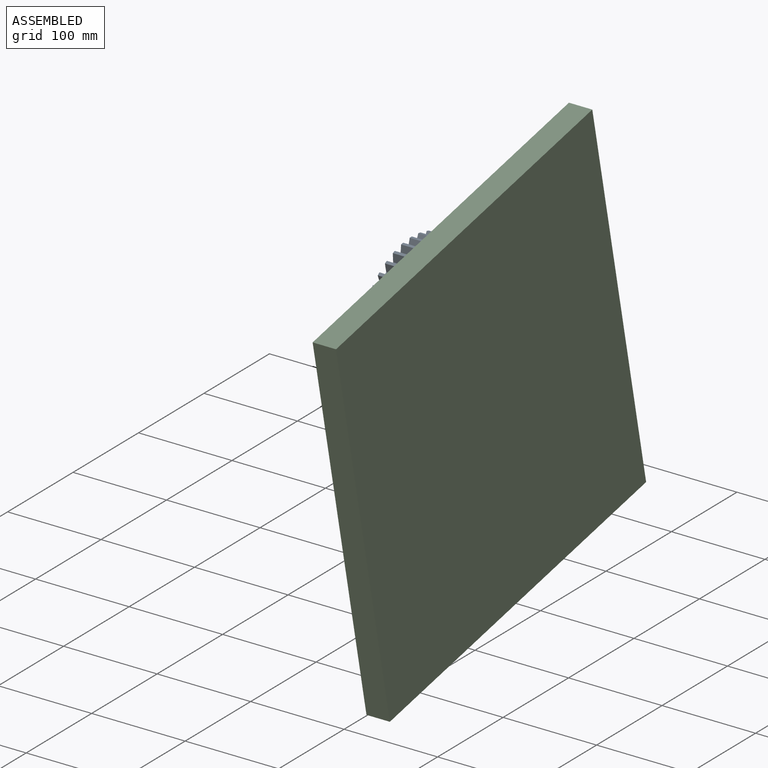
[diagram: assembled view]
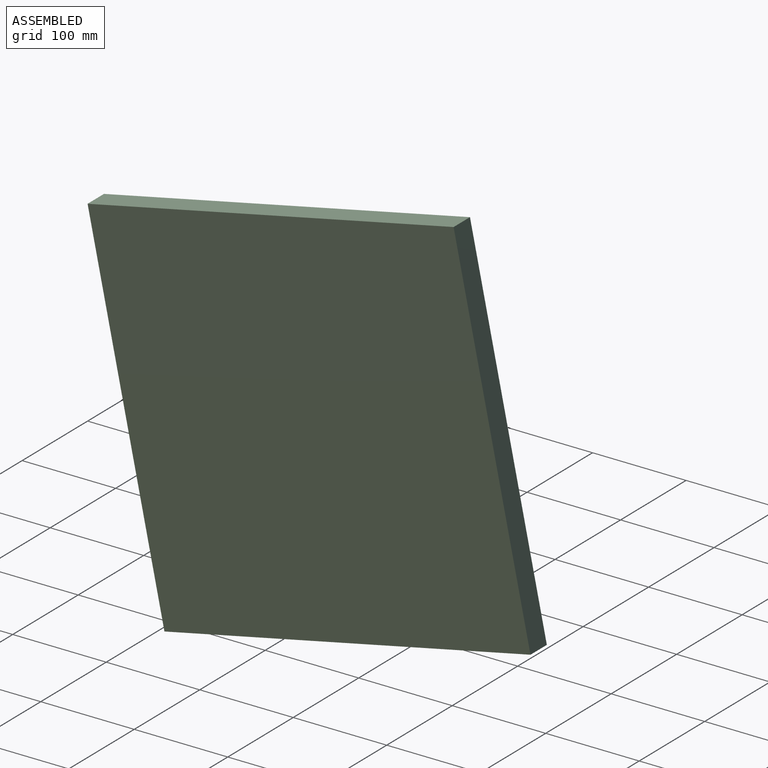
[diagram: assembled view, second angle]
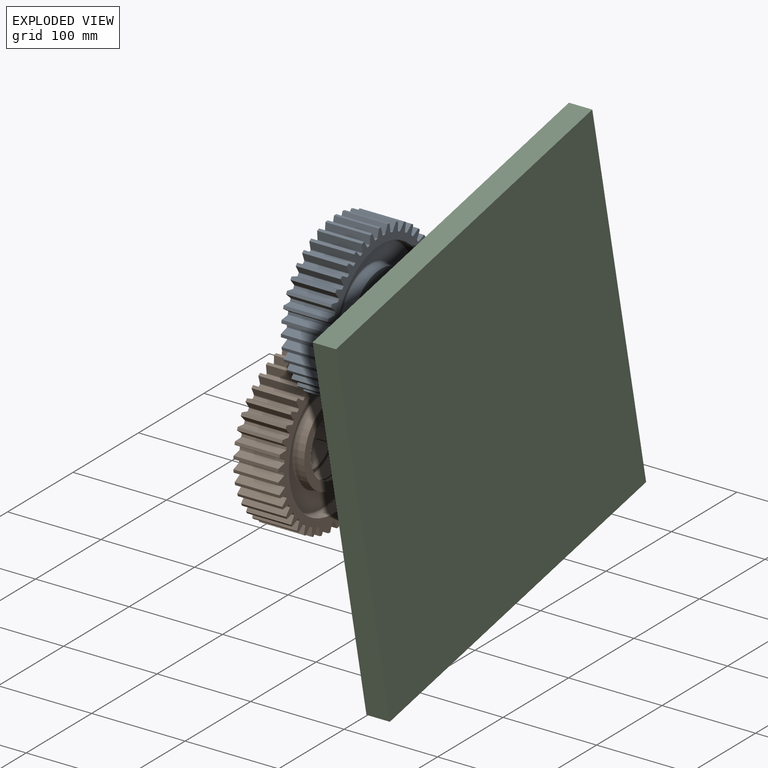
[diagram: exploded view]
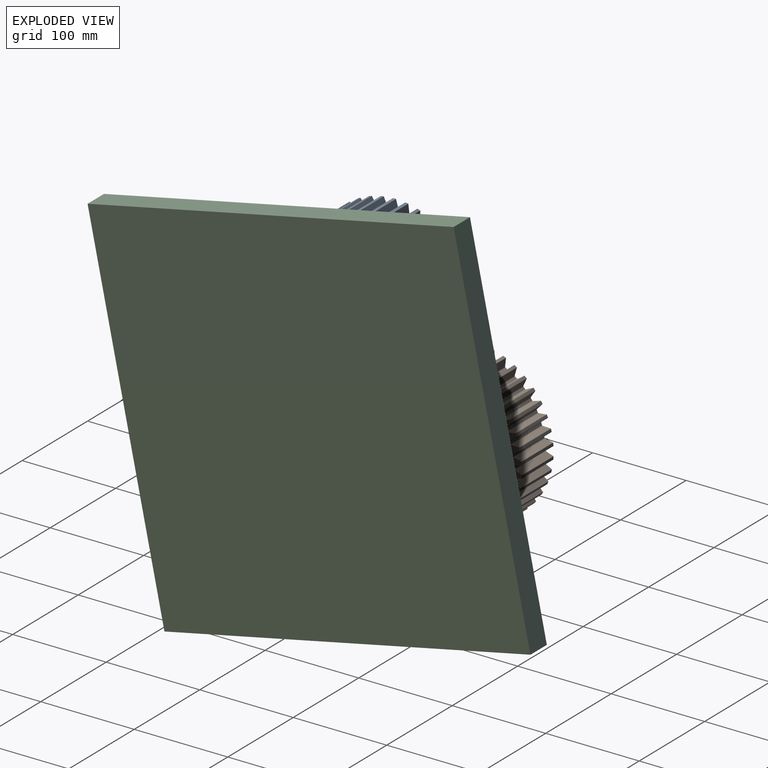
[diagram: exploded view, second angle]
ASSEMBLY  parts=3 mates=2
PART A: 267 faces, bbox 48x167.7x167.7 mm
  f0: cylinder r=84mm len=48mm, axis (-1,0,0), area 155mm2, adj f2,f234,f236,f264
  f1: cylinder r=1mm len=48mm, axis (-1,0,0), area 59.3mm2, adj f2,f5,f234,f236
  f2: plane 48x8.57mm, normal (0,-0.19,-0.98), area 418.9mm2, adj f0,f1,f234,f236
  f3: plane 48x7.63mm, normal (0,-0.48,0.87), area 418.9mm2, adj f4,f6,f234,f236
  f4: cylinder r=1mm len=48mm, axis (-1,0,0), area 59.3mm2, adj f3,f5,f234,f236
  f5: cylinder r=75mm len=48mm, axis (-1,0,0), area 100mm2, adj f1,f4,f234,f236
  f6: cylinder r=84mm len=48mm, axis (-1,0,0), area 155mm2, adj f3,f8,f234,f236
  f7: cylinder r=1mm len=48mm, axis (-1,0,0), area 59.3mm2, adj f8,f11,f234,f236
  f8: plane 48x8.72mm, normal (0,-0.03,-1), area 418.9mm2, adj f6,f7,f234,f236
  f9: plane 48x6.88mm, normal (0,-0.62,0.79), area 418.9mm2, adj f10,f12,f234,f236
  f10: cylinder r=1mm len=48mm, axis (-1,0,0), area 59.3mm2, adj f9,f11,f234,f236
  f11: cylinder r=75mm len=48mm, axis (-1,0,0), area 100mm2, adj f7,f10,f234,f236
  f12: cylinder r=84mm len=48mm, axis (-1,0,0), area 155mm2, adj f9,f14,f234,f236
  f13: cylinder r=1mm len=48mm, axis (-1,0,0), area 59.3mm2, adj f14,f17,f234,f236
  f14: plane 48x8.66mm, normal (0,0.12,-0.99), area 418.9mm2, adj f12,f13,f234,f236
  f15: plane 48x6.38mm, normal (0,-0.73,0.68), area 418.9mm2, adj f16,f18,f234,f236
  f16: cylinder r=1mm len=48mm, axis (-1,0,0), area 59.3mm2, adj f15,f17,f234,f236
  f17: cylinder r=75mm len=48mm, axis (-1,0,0), area 100mm2, adj f13,f16,f234,f236
  f18: cylinder r=84mm len=48mm, axis (-1,0,0), area 155mm2, adj f15,f20,f234,f236
  f19: cylinder r=1mm len=48mm, axis (-1,0,0), area 59.3mm2, adj f20,f23,f234,f236
  f20: plane 48x8.39mm, normal (0,0.28,-0.96), area 418.9mm2, adj f18,f19,f234,f236
  f21: plane 48x7.24mm, normal (0,-0.83,0.56), area 418.9mm2, adj f22,f24,f234,f236
  f22: cylinder r=1mm len=48mm, axis (-1,0,0), area 59.3mm2, adj f21,f23,f234,f236
  f23: cylinder r=75mm len=48mm, axis (-1,0,0), area 100mm2, adj f19,f22,f234,f236
  f24: cylinder r=84mm len=48mm, axis (-1,0,0), area 155mm2, adj f21,f26,f234,f236
  f25: cylinder r=1mm len=48mm, axis (-1,0,0), area 59.3mm2, adj f26,f29,f234,f236
  f26: plane 48x7.91mm, normal (0,0.42,-0.91), area 418.9mm2, adj f24,f25,f234,f236
  f27: plane 48x7.91mm, normal (0,-0.91,0.42), area 418.9mm2, adj f28,f30,f234,f236
  f28: cylinder r=1mm len=48mm, axis (-1,0,0), area 59.3mm2, adj f27,f29,f234,f236
  f29: cylinder r=75mm len=48mm, axis (-1,0,0), area 100mm2, adj f25,f28,f234,f236
  f30: cylinder r=84mm len=48mm, axis (-1,0,0), area 155mm2, adj f27,f32,f234,f236
  f31: cylinder r=1mm len=48mm, axis (-1,0,0), area 59.3mm2, adj f32,f35,f234,f236
  f32: plane 48x7.24mm, normal (0,0.56,-0.83), area 418.9mm2, adj f30,f31,f234,f236
  f33: plane 48x8.39mm, normal (0,-0.96,0.28), area 418.9mm2, adj f34,f36,f234,f236
  f34: cylinder r=1mm len=48mm, axis (-1,0,0), area 59.3mm2, adj f33,f35,f234,f236
  f35: cylinder r=75mm len=48mm, axis (-1,0,0), area 100mm2, adj f31,f34,f234,f236
  f36: cylinder r=84mm len=48mm, axis (-1,0,0), area 155mm2, adj f33,f38,f234,f236
  f37: cylinder r=1mm len=48mm, axis (-1,0,0), area 59.3mm2, adj f38,f41,f234,f236
  f38: plane 48x6.38mm, normal (0,0.68,-0.73), area 418.9mm2, adj f36,f37,f234,f236
  f39: plane 48x8.66mm, normal (0,-0.99,0.12), area 418.9mm2, adj f40,f42,f234,f236
  f40: cylinder r=1mm len=48mm, axis (-1,0,0), area 59.3mm2, adj f39,f41,f234,f236
  f41: cylinder r=75mm len=48mm, axis (-1,0,0), area 100mm2, adj f37,f40,f234,f236
  f42: cylinder r=84mm len=48mm, axis (-1,0,0), area 155mm2, adj f39,f44,f234,f236
  f43: cylinder r=1mm len=48mm, axis (-1,0,0), area 59.3mm2, adj f44,f47,f234,f236
  f44: plane 48x6.88mm, normal (0,0.79,-0.62), area 418.9mm2, adj f42,f43,f234,f236
  f45: plane 48x8.72mm, normal (0,-1,-0.03), area 418.9mm2, adj f46,f48,f234,f236
  f46: cylinder r=1mm len=48mm, axis (-1,0,0), area 59.3mm2, adj f45,f47,f234,f236
  f47: cylinder r=75mm len=48mm, axis (-1,0,0), area 100mm2, adj f43,f46,f234,f236
  f48: cylinder r=84mm len=48mm, axis (-1,0,0), area 155mm2, adj f45,f50,f234,f236
  f49: cylinder r=1mm len=48mm, axis (-1,0,0), area 59.3mm2, adj f50,f53,f234,f236
  f50: plane 48x7.63mm, normal (0,0.87,-0.48), area 418.9mm2, adj f48,f49,f234,f236
  f51: plane 48x8.57mm, normal (0,-0.98,-0.19), area 418.9mm2, adj f52,f54,f234,f236
  f52: cylinder r=1mm len=48mm, axis (-1,0,0), area 59.3mm2, adj f51,f53,f234,f236
  f53: cylinder r=75mm len=48mm, axis (-1,0,0), area 100mm2, adj f49,f52,f234,f236
  f54: cylinder r=84mm len=48mm, axis (-1,0,0), area 155mm2, adj f51,f56,f234,f236
  f55: cylinder r=1mm len=48mm, axis (-1,0,0), area 59.3mm2, adj f56,f59,f234,f236
  f56: plane 48x8.2mm, normal (0,0.94,-0.34), area 418.9mm2, adj f54,f55,f234,f236
  f57: plane 48x8.2mm, normal (0,-0.94,-0.34), area 418.9mm2, adj f58,f60,f234,f236
  f58: cylinder r=1mm len=48mm, axis (-1,0,0), area 59.3mm2, adj f57,f59,f234,f236
  f59: cylinder r=75mm len=48mm, axis (-1,0,0), area 100mm2, adj f55,f58,f234,f236
  f60: cylinder r=84mm len=48mm, axis (-1,0,0), area 155mm2, adj f57,f62,f234,f236
  f61: cylinder r=1mm len=48mm, axis (-1,0,0), area 59.3mm2, adj f62,f65,f234,f236
  f62: plane 48x8.57mm, normal (0,0.98,-0.19), area 418.9mm2, adj f60,f61,f234,f236
  f63: plane 48x7.63mm, normal (0,-0.87,-0.48), area 418.9mm2, adj f64,f66,f234,f236
  f64: cylinder r=1mm len=48mm, axis (-1,0,0), area 59.3mm2, adj f63,f65,f234,f236
  f65: cylinder r=75mm len=48mm, axis (-1,0,0), area 100mm2, adj f61,f64,f234,f236
  f66: cylinder r=84mm len=48mm, axis (-1,0,0), area 155mm2, adj f63,f68,f234,f236
  f67: cylinder r=1mm len=48mm, axis (-1,0,0), area 59.3mm2, adj f68,f71,f234,f236
  f68: plane 48x8.72mm, normal (0,1,-0.03), area 418.9mm2, adj f66,f67,f234,f236
  f69: plane 48x6.88mm, normal (0,-0.79,-0.62), area 418.9mm2, adj f70,f72,f234,f236
  f70: cylinder r=1mm len=48mm, axis (-1,0,0), area 59.3mm2, adj f69,f71,f234,f236
  f71: cylinder r=75mm len=48mm, axis (-1,0,0), area 100mm2, adj f67,f70,f234,f236
  f72: cylinder r=84mm len=48mm, axis (-1,0,0), area 155mm2, adj f69,f74,f234,f236
  f73: cylinder r=1mm len=48mm, axis (-1,0,0), area 59.3mm2, adj f74,f77,f234,f236
  f74: plane 48x8.66mm, normal (0,0.99,0.12), area 418.9mm2, adj f72,f73,f234,f236
  f75: plane 48x6.38mm, normal (0,-0.68,-0.73), area 418.9mm2, adj f76,f78,f234,f236
  f76: cylinder r=1mm len=48mm, axis (-1,0,0), area 59.3mm2, adj f75,f77,f234,f236
  f77: cylinder r=75mm len=48mm, axis (-1,0,0), area 100mm2, adj f73,f76,f234,f236
  f78: cylinder r=84mm len=48mm, axis (-1,0,0), area 155mm2, adj f75,f80,f234,f236
  f79: cylinder r=1mm len=48mm, axis (-1,0,0), area 59.3mm2, adj f80,f83,f234,f236
  f80: plane 48x8.39mm, normal (0,0.96,0.28), area 418.9mm2, adj f78,f79,f234,f236
  f81: plane 48x7.24mm, normal (0,-0.56,-0.83), area 418.9mm2, adj f82,f84,f234,f236
  f82: cylinder r=1mm len=48mm, axis (-1,0,0), area 59.3mm2, adj f81,f83,f234,f236
  f83: cylinder r=75mm len=48mm, axis (-1,0,0), area 100mm2, adj f79,f82,f234,f236
  f84: cylinder r=84mm len=48mm, axis (-1,0,0), area 155mm2, adj f81,f86,f234,f236
  f85: cylinder r=1mm len=48mm, axis (-1,0,0), area 59.3mm2, adj f86,f89,f234,f236
  f86: plane 48x7.91mm, normal (0,0.91,0.42), area 418.9mm2, adj f84,f85,f234,f236
  f87: plane 48x7.91mm, normal (0,-0.42,-0.91), area 418.9mm2, adj f88,f90,f234,f236
  f88: cylinder r=1mm len=48mm, axis (-1,0,0), area 59.3mm2, adj f87,f89,f234,f236
  f89: cylinder r=75mm len=48mm, axis (-1,0,0), area 100mm2, adj f85,f88,f234,f236
  f90: cylinder r=84mm len=48mm, axis (-1,0,0), area 155mm2, adj f87,f92,f234,f236
  f91: cylinder r=1mm len=48mm, axis (-1,0,0), area 59.3mm2, adj f92,f95,f234,f236
  f92: plane 48x7.24mm, normal (0,0.83,0.56), area 418.9mm2, adj f90,f91,f234,f236
  f93: plane 48x8.39mm, normal (0,-0.28,-0.96), area 418.9mm2, adj f94,f96,f234,f236
  f94: cylinder r=1mm len=48mm, axis (-1,0,0), area 59.3mm2, adj f93,f95,f234,f236
  f95: cylinder r=75mm len=48mm, axis (-1,0,0), area 100mm2, adj f91,f94,f234,f236
  f96: cylinder r=84mm len=48mm, axis (-1,0,0), area 155mm2, adj f93,f98,f234,f236
  f97: cylinder r=1mm len=48mm, axis (-1,0,0), area 59.3mm2, adj f98,f101,f234,f236
  f98: plane 48x6.38mm, normal (0,0.73,0.68), area 418.9mm2, adj f96,f97,f234,f236
  f99: plane 48x8.66mm, normal (0,-0.12,-0.99), area 418.9mm2, adj f100,f102,f234,f236
  f100: cylinder r=1mm len=48mm, axis (-1,0,0), area 59.3mm2, adj f99,f101,f234,f236
  f101: cylinder r=75mm len=48mm, axis (-1,0,0), area 100mm2, adj f97,f100,f234,f236
  f102: cylinder r=84mm len=48mm, axis (-1,0,0), area 155mm2, adj f99,f104,f234,f236
  f103: cylinder r=1mm len=48mm, axis (-1,0,0), area 59.3mm2, adj f104,f107,f234,f236
  f104: plane 48x6.88mm, normal (0,0.62,0.79), area 418.9mm2, adj f102,f103,f234,f236
  f105: plane 48x8.72mm, normal (0,0.03,-1), area 418.9mm2, adj f106,f108,f234,f236
  f106: cylinder r=1mm len=48mm, axis (-1,0,0), area 59.3mm2, adj f105,f107,f234,f236
  f107: cylinder r=75mm len=48mm, axis (-1,0,0), area 100mm2, adj f103,f106,f234,f236
  f108: cylinder r=84mm len=48mm, axis (-1,0,0), area 155mm2, adj f105,f110,f234,f236
  f109: cylinder r=1mm len=48mm, axis (-1,0,0), area 59.3mm2, adj f110,f113,f234,f236
  f110: plane 48x7.63mm, normal (0,0.48,0.87), area 418.9mm2, adj f108,f109,f234,f236
  f111: plane 48x8.57mm, normal (0,0.19,-0.98), area 418.9mm2, adj f112,f114,f234,f236
  f112: cylinder r=1mm len=48mm, axis (-1,0,0), area 59.3mm2, adj f111,f113,f234,f236
  f113: cylinder r=75mm len=48mm, axis (-1,0,0), area 100mm2, adj f109,f112,f234,f236
  f114: cylinder r=84mm len=48mm, axis (-1,0,0), area 155mm2, adj f111,f116,f234,f236
  f115: cylinder r=1mm len=48mm, axis (-1,0,0), area 59.3mm2, adj f116,f119,f234,f236
  f116: plane 48x8.2mm, normal (0,0.34,0.94), area 418.9mm2, adj f114,f115,f234,f236
  f117: plane 48x8.2mm, normal (0,0.34,-0.94), area 418.9mm2, adj f118,f120,f234,f236
  f118: cylinder r=1mm len=48mm, axis (-1,0,0), area 59.3mm2, adj f117,f119,f234,f236
  f119: cylinder r=75mm len=48mm, axis (-1,0,0), area 100mm2, adj f115,f118,f234,f236
  f120: cylinder r=84mm len=48mm, axis (-1,0,0), area 155mm2, adj f117,f122,f234,f236
  f121: cylinder r=1mm len=48mm, axis (-1,0,0), area 59.3mm2, adj f122,f125,f234,f236
  f122: plane 48x8.57mm, normal (0,0.19,0.98), area 418.9mm2, adj f120,f121,f234,f236
  f123: plane 48x7.63mm, normal (0,0.48,-0.87), area 418.9mm2, adj f124,f126,f234,f236
  f124: cylinder r=1mm len=48mm, axis (-1,0,0), area 59.3mm2, adj f123,f125,f234,f236
  f125: cylinder r=75mm len=48mm, axis (-1,0,0), area 100mm2, adj f121,f124,f234,f236
  f126: cylinder r=84mm len=48mm, axis (-1,0,0), area 155mm2, adj f123,f128,f234,f236
  f127: cylinder r=1mm len=48mm, axis (-1,0,0), area 59.3mm2, adj f128,f131,f234,f236
  f128: plane 48x8.72mm, normal (0,0.03,1), area 418.9mm2, adj f126,f127,f234,f236
  f129: plane 48x6.88mm, normal (0,0.62,-0.79), area 418.9mm2, adj f130,f132,f234,f236
  f130: cylinder r=1mm len=48mm, axis (-1,0,0), area 59.3mm2, adj f129,f131,f234,f236
  f131: cylinder r=75mm len=48mm, axis (-1,0,0), area 100mm2, adj f127,f130,f234,f236
  f132: cylinder r=84mm len=48mm, axis (-1,0,0), area 155mm2, adj f129,f134,f234,f236
  f133: cylinder r=1mm len=48mm, axis (-1,0,0), area 59.3mm2, adj f134,f137,f234,f236
  f134: plane 48x8.66mm, normal (0,-0.12,0.99), area 418.9mm2, adj f132,f133,f234,f236
  f135: plane 48x6.38mm, normal (0,0.73,-0.68), area 418.9mm2, adj f136,f138,f234,f236
  f136: cylinder r=1mm len=48mm, axis (-1,0,0), area 59.3mm2, adj f135,f137,f234,f236
  f137: cylinder r=75mm len=48mm, axis (-1,0,0), area 100mm2, adj f133,f136,f234,f236
  f138: cylinder r=84mm len=48mm, axis (-1,0,0), area 155mm2, adj f135,f140,f234,f236
  f139: cylinder r=1mm len=48mm, axis (-1,0,0), area 59.3mm2, adj f140,f143,f234,f236
  f140: plane 48x8.39mm, normal (0,-0.28,0.96), area 418.9mm2, adj f138,f139,f234,f236
  f141: plane 48x7.24mm, normal (0,0.83,-0.56), area 418.9mm2, adj f142,f144,f234,f236
  f142: cylinder r=1mm len=48mm, axis (-1,0,0), area 59.3mm2, adj f141,f143,f234,f236
  f143: cylinder r=75mm len=48mm, axis (-1,0,0), area 100mm2, adj f139,f142,f234,f236
  f144: cylinder r=84mm len=48mm, axis (-1,0,0), area 155mm2, adj f141,f146,f234,f236
  f145: cylinder r=1mm len=48mm, axis (-1,0,0), area 59.3mm2, adj f146,f149,f234,f236
  f146: plane 48x7.91mm, normal (0,-0.42,0.91), area 418.9mm2, adj f144,f145,f234,f236
  f147: plane 48x7.91mm, normal (0,0.91,-0.42), area 418.9mm2, adj f148,f150,f234,f236
  f148: cylinder r=1mm len=48mm, axis (-1,0,0), area 59.3mm2, adj f147,f149,f234,f236
  f149: cylinder r=75mm len=48mm, axis (-1,0,0), area 100mm2, adj f145,f148,f234,f236
  f150: cylinder r=84mm len=48mm, axis (-1,0,0), area 155mm2, adj f147,f152,f234,f236
  f151: cylinder r=1mm len=48mm, axis (-1,0,0), area 59.3mm2, adj f152,f155,f234,f236
  f152: plane 48x7.24mm, normal (0,-0.56,0.83), area 418.9mm2, adj f150,f151,f234,f236
  f153: plane 48x8.39mm, normal (0,0.96,-0.28), area 418.9mm2, adj f154,f156,f234,f236
  f154: cylinder r=1mm len=48mm, axis (-1,0,0), area 59.3mm2, adj f153,f155,f234,f236
  f155: cylinder r=75mm len=48mm, axis (-1,0,0), area 100mm2, adj f151,f154,f234,f236
  f156: cylinder r=84mm len=48mm, axis (-1,0,0), area 155mm2, adj f153,f158,f234,f236
  f157: cylinder r=1mm len=48mm, axis (-1,0,0), area 59.3mm2, adj f158,f161,f234,f236
  f158: plane 48x6.38mm, normal (0,-0.68,0.73), area 418.9mm2, adj f156,f157,f234,f236
  f159: plane 48x8.66mm, normal (0,0.99,-0.12), area 418.9mm2, adj f160,f162,f234,f236
  f160: cylinder r=1mm len=48mm, axis (-1,0,0), area 59.3mm2, adj f159,f161,f234,f236
  f161: cylinder r=75mm len=48mm, axis (-1,0,0), area 100mm2, adj f157,f160,f234,f236
  f162: cylinder r=84mm len=48mm, axis (-1,0,0), area 155mm2, adj f159,f164,f234,f236
  f163: cylinder r=1mm len=48mm, axis (-1,0,0), area 59.3mm2, adj f164,f167,f234,f236
  f164: plane 48x6.88mm, normal (0,-0.79,0.62), area 418.9mm2, adj f162,f163,f234,f236
  f165: plane 48x8.72mm, normal (0,1,0.03), area 418.9mm2, adj f166,f168,f234,f236
  f166: cylinder r=1mm len=48mm, axis (-1,0,0), area 59.3mm2, adj f165,f167,f234,f236
  f167: cylinder r=75mm len=48mm, axis (-1,0,0), area 100mm2, adj f163,f166,f234,f236
  f168: cylinder r=84mm len=48mm, axis (-1,0,0), area 155mm2, adj f165,f170,f234,f236
  f169: cylinder r=1mm len=48mm, axis (-1,0,0), area 59.3mm2, adj f170,f173,f234,f236
  f170: plane 48x7.63mm, normal (0,-0.87,0.48), area 418.9mm2, adj f168,f169,f234,f236
  f171: plane 48x8.57mm, normal (0,0.98,0.19), area 418.9mm2, adj f172,f174,f234,f236
  f172: cylinder r=1mm len=48mm, axis (-1,0,0), area 59.3mm2, adj f171,f173,f234,f236
  f173: cylinder r=75mm len=48mm, axis (-1,0,0), area 100mm2, adj f169,f172,f234,f236
  f174: cylinder r=84mm len=48mm, axis (-1,0,0), area 155mm2, adj f171,f176,f234,f236
  f175: cylinder r=1mm len=48mm, axis (-1,0,0), area 59.3mm2, adj f176,f179,f234,f236
  f176: plane 48x8.2mm, normal (0,-0.94,0.34), area 418.9mm2, adj f174,f175,f234,f236
  f177: plane 48x8.2mm, normal (0,0.94,0.34), area 418.9mm2, adj f178,f180,f234,f236
  f178: cylinder r=1mm len=48mm, axis (-1,0,0), area 59.3mm2, adj f177,f179,f234,f236
  f179: cylinder r=75mm len=48mm, axis (-1,0,0), area 100mm2, adj f175,f178,f234,f236
  f180: cylinder r=84mm len=48mm, axis (-1,0,0), area 155mm2, adj f177,f182,f234,f236
  f181: cylinder r=1mm len=48mm, axis (-1,0,0), area 59.3mm2, adj f182,f185,f234,f236
  f182: plane 48x8.57mm, normal (0,-0.98,0.19), area 418.9mm2, adj f180,f181,f234,f236
  f183: plane 48x7.63mm, normal (0,0.87,0.48), area 418.9mm2, adj f184,f186,f234,f236
  f184: cylinder r=1mm len=48mm, axis (-1,0,0), area 59.3mm2, adj f183,f185,f234,f236
  f185: cylinder r=75mm len=48mm, axis (-1,0,0), area 100mm2, adj f181,f184,f234,f236
  f186: cylinder r=84mm len=48mm, axis (-1,0,0), area 155mm2, adj f183,f188,f234,f236
  f187: cylinder r=1mm len=48mm, axis (-1,0,0), area 59.3mm2, adj f188,f191,f234,f236
  f188: plane 48x8.72mm, normal (0,-1,0.03), area 418.9mm2, adj f186,f187,f234,f236
  f189: plane 48x6.88mm, normal (0,0.79,0.62), area 418.9mm2, adj f190,f192,f234,f236
  f190: cylinder r=1mm len=48mm, axis (-1,0,0), area 59.3mm2, adj f189,f191,f234,f236
  f191: cylinder r=75mm len=48mm, axis (-1,0,0), area 100mm2, adj f187,f190,f234,f236
  f192: cylinder r=84mm len=48mm, axis (-1,0,0), area 155mm2, adj f189,f194,f234,f236
  f193: cylinder r=1mm len=48mm, axis (-1,0,0), area 59.3mm2, adj f194,f197,f234,f236
  f194: plane 48x8.66mm, normal (0,-0.99,-0.12), area 418.9mm2, adj f192,f193,f234,f236
  f195: plane 48x6.38mm, normal (0,0.68,0.73), area 418.9mm2, adj f196,f198,f234,f236
  f196: cylinder r=1mm len=48mm, axis (-1,0,0), area 59.3mm2, adj f195,f197,f234,f236
  f197: cylinder r=75mm len=48mm, axis (-1,0,0), area 100mm2, adj f193,f196,f234,f236
  f198: cylinder r=84mm len=48mm, axis (-1,0,0), area 155mm2, adj f195,f200,f234,f236
  f199: cylinder r=1mm len=48mm, axis (-1,0,0), area 59.3mm2, adj f200,f203,f234,f236
  f200: plane 48x8.39mm, normal (0,-0.96,-0.28), area 418.9mm2, adj f198,f199,f234,f236
  f201: plane 48x7.24mm, normal (0,0.56,0.83), area 418.9mm2, adj f202,f204,f234,f236
  f202: cylinder r=1mm len=48mm, axis (-1,0,0), area 59.3mm2, adj f201,f203,f234,f236
  f203: cylinder r=75mm len=48mm, axis (-1,0,0), area 100mm2, adj f199,f202,f234,f236
  f204: cylinder r=84mm len=48mm, axis (-1,0,0), area 155mm2, adj f201,f206,f234,f236
  f205: cylinder r=1mm len=48mm, axis (-1,0,0), area 59.3mm2, adj f206,f209,f234,f236
  f206: plane 48x7.91mm, normal (0,-0.91,-0.42), area 418.9mm2, adj f204,f205,f234,f236
  f207: plane 48x7.91mm, normal (0,0.42,0.91), area 418.9mm2, adj f208,f210,f234,f236
  f208: cylinder r=1mm len=48mm, axis (-1,0,0), area 59.3mm2, adj f207,f209,f234,f236
  f209: cylinder r=75mm len=48mm, axis (-1,0,0), area 100mm2, adj f205,f208,f234,f236
  f210: cylinder r=84mm len=48mm, axis (-1,0,0), area 155mm2, adj f207,f212,f234,f236
  f211: cylinder r=1mm len=48mm, axis (-1,0,0), area 59.3mm2, adj f212,f215,f234,f236
  f212: plane 48x7.24mm, normal (0,-0.83,-0.56), area 418.9mm2, adj f210,f211,f234,f236
  f213: plane 48x8.39mm, normal (0,0.28,0.96), area 418.9mm2, adj f214,f216,f234,f236
  f214: cylinder r=1mm len=48mm, axis (-1,0,0), area 59.3mm2, adj f213,f215,f234,f236
  f215: cylinder r=75mm len=48mm, axis (-1,0,0), area 100mm2, adj f211,f214,f234,f236
  f216: cylinder r=84mm len=48mm, axis (-1,0,0), area 155mm2, adj f213,f218,f234,f236
  f217: cylinder r=1mm len=48mm, axis (-1,0,0), area 59.3mm2, adj f218,f221,f234,f236
  f218: plane 48x6.38mm, normal (0,-0.73,-0.68), area 418.9mm2, adj f216,f217,f234,f236
  f219: plane 48x8.66mm, normal (0,0.12,0.99), area 418.9mm2, adj f220,f222,f234,f236
  f220: cylinder r=1mm len=48mm, axis (-1,0,0), area 59.3mm2, adj f219,f221,f234,f236
  f221: cylinder r=75mm len=48mm, axis (-1,0,0), area 100mm2, adj f217,f220,f234,f236
  f222: cylinder r=84mm len=48mm, axis (-1,0,0), area 155mm2, adj f219,f224,f234,f236
  f223: cylinder r=1mm len=48mm, axis (-1,0,0), area 59.3mm2, adj f224,f227,f234,f236
  f224: plane 48x6.88mm, normal (0,-0.62,-0.79), area 418.9mm2, adj f222,f223,f234,f236
  f225: plane 48x8.72mm, normal (0,-0.03,1), area 418.9mm2, adj f226,f228,f234,f236
  f226: cylinder r=1mm len=48mm, axis (-1,0,0), area 59.3mm2, adj f225,f227,f234,f236
  f227: cylinder r=75mm len=48mm, axis (-1,0,0), area 100mm2, adj f223,f226,f234,f236
  f228: cylinder r=84mm len=48mm, axis (-1,0,0), area 155mm2, adj f225,f230,f234,f236
  f229: cylinder r=1mm len=48mm, axis (-1,0,0), area 59.3mm2, adj f230,f233,f234,f236
  f230: plane 48x7.63mm, normal (0,-0.48,-0.87), area 418.9mm2, adj f228,f229,f234,f236
  f231: plane 48x8.57mm, normal (0,-0.19,0.98), area 418.9mm2, adj f232,f234,f235,f236
  f232: cylinder r=1mm len=48mm, axis (-1,0,0), area 59.3mm2, adj f231,f233,f234,f236
  f233: cylinder r=75mm len=48mm, axis (-1,0,0), area 100mm2, adj f229,f232,f234,f236
  f234: plane 167.7x167.7mm, normal (1,0,0), area 5434.6mm2, adj f0,f1,f2,f3,f4,f5,f6,f7
  f235: cylinder r=84mm len=48mm, axis (-1,0,0), area 155mm2, adj f231,f234,f236,f263
  f236: plane 167.7x167.7mm, normal (-1,0,0), area 5434.6mm2, adj f0,f1,f2,f3,f4,f5,f6,f7
  f237: cylinder r=67.5mm len=135mm, axis (-1,0,0), area 4241.2mm2, adj f236,f238
  f238: torus R=65.5mm, axis (-1,0,0), area 1318.1mm2, adj f237,f239
  f239: plane 131x131mm, normal (-1,0,0), area 6830.6mm2, adj f238,f240
  f240: torus R=46mm, axis (-1,0,0), area 882.9mm2, adj f239,f241
  f241: cylinder r=44mm len=88mm, axis (-1,0,0), area 2764.6mm2, adj f240,f242
  f242: plane 88x88mm, normal (-1,0,0), area 2450.4mm2, adj f241,f243
  f243: cylinder r=34mm len=68mm, axis (-1,0,0), area 640.9mm2, adj f242,f244
  f244: plane 71x71mm, normal (1,0,0), area 327.5mm2, adj f243,f245
  f245: cylinder r=35.5mm len=71mm, axis (-1,0,0), area 669.2mm2, adj f244,f246
  f246: plane 71x71mm, normal (-1,0,0), area 327.5mm2, adj f245,f247
  f247: cylinder r=34mm len=68mm, axis (-1,0,0), area 3204.4mm2, adj f246,f248
  f248: plane 68x68mm, normal (-1,0,0), area 804.2mm2, adj f247,f249
  f249: cylinder r=30mm len=60mm, axis (-1,0,0), area 1131mm2, adj f248,f250
  f250: plane 68x68mm, normal (1,0,0), area 804.2mm2, adj f249,f251
  f251: cylinder r=34mm len=68mm, axis (-1,0,0), area 3204.4mm2, adj f250,f252
  f252: plane 71x71mm, normal (1,0,0), area 327.5mm2, adj f251,f253
  f253: cylinder r=35.5mm len=71mm, axis (-1,0,0), area 669.2mm2, adj f252,f254
  f254: plane 71x71mm, normal (-1,0,0), area 327.5mm2, adj f253,f255
  f255: cylinder r=34mm len=68mm, axis (-1,0,0), area 640.9mm2, adj f254,f256
  f256: plane 88x88mm, normal (1,0,0), area 2450.4mm2, adj f255,f257
  f257: cylinder r=44mm len=88mm, axis (-1,0,0), area 2764.6mm2, adj f256,f258
  f258: torus R=46mm, axis (-1,0,0), area 882.9mm2, adj f257,f259
  f259: plane 131x131mm, normal (1,0,0), area 6830.6mm2, adj f258,f260
  f260: torus R=65.5mm, axis (-1,0,0), area 1318.1mm2, adj f259,f261
  f261: cylinder r=67.5mm len=135mm, axis (-1,0,0), area 4241.2mm2, adj f234,f260
  f262: cylinder r=1mm len=48mm, axis (-1,0,0), area 59.3mm2, adj f234,f236,f263,f266
  f263: plane 48x8.2mm, normal (0,-0.34,-0.94), area 418.9mm2, adj f234,f235,f236,f262
  f264: plane 48x8.2mm, normal (0,-0.34,0.94), area 418.9mm2, adj f0,f234,f236,f265
  f265: cylinder r=1mm len=48mm, axis (-1,0,0), area 59.3mm2, adj f234,f236,f264,f266
  f266: cylinder r=75mm len=48mm, axis (-1,0,0), area 100mm2, adj f234,f236,f262,f265
PART B: same geometry as A
PART C: 10 faces, bbox 400x75x400 mm
  f0: plane 400x25mm, normal (0,0,-1), area 10000mm2, adj f1,f3,f4,f5
  f1: plane 400x25mm, normal (1,0,0), area 10000mm2, adj f0,f2,f4,f5
  f2: plane 400x25mm, normal (0,0,1), area 10000mm2, adj f1,f3,f4,f5
  f3: plane 400x25mm, normal (-1,0,0), area 10000mm2, adj f0,f2,f4,f5
  f4: plane 400x400mm, normal (0,-1,0), area 154345.1mm2, adj f0,f1,f2,f3,f6,f8
  f5: plane 400x400mm, normal (0,1,0), area 160000mm2, adj f0,f1,f2,f3
  f6: cylinder r=30mm len=60mm, axis (0,1,0), area 9424.8mm2, adj f4,f7
  f7: plane 60x60mm, normal (0,-1,0), area 2827.4mm2, adj f6
  f8: cylinder r=30mm len=60mm, axis (0,1,0), area 9424.8mm2, adj f4,f9
  f9: plane 60x60mm, normal (0,-1,0), area 2827.4mm2, adj f8
PLACE A rot(axis=(1,0,0),176.3deg) t=(-537.55,-143.37,-362.49)mm
PLACE B rot(axis=(1,0,0),27.4deg) t=(-537.55,-110.28,-520.05)mm
PLACE C rot(axis=(-0.53,-0.53,-0.66),113.4deg) t=(-463.55,-127.55,-437.85)mm fixed
MATE revolute C.f8 <-> A.f0  axis (1,0,0) through (-513.55,-143.37,-362.49)mm
MATE revolute C.f6 <-> B.f0  axis (1,0,0) through (-513.55,-110.28,-520.05)mm
